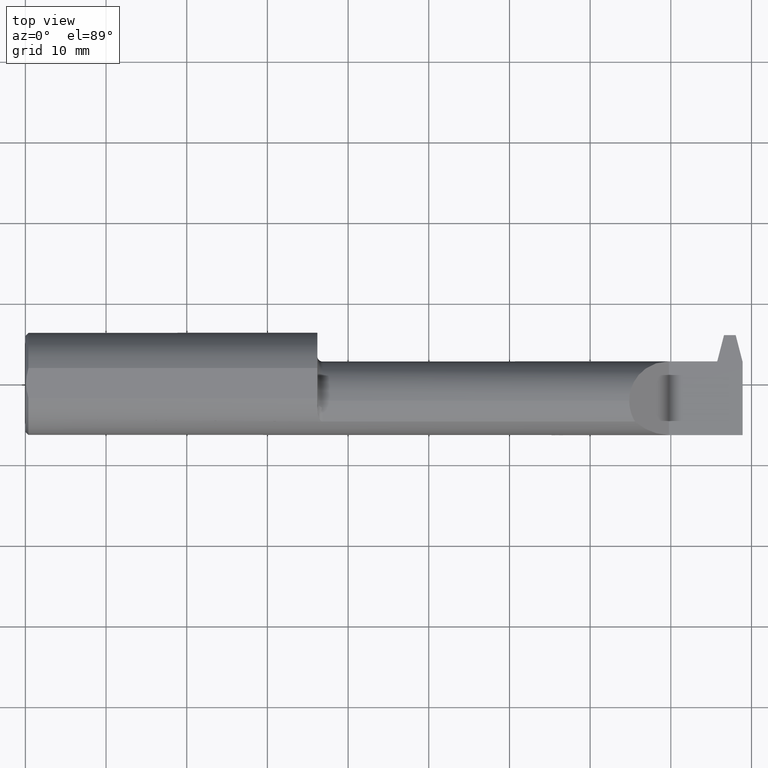
[diagram: clean part render]
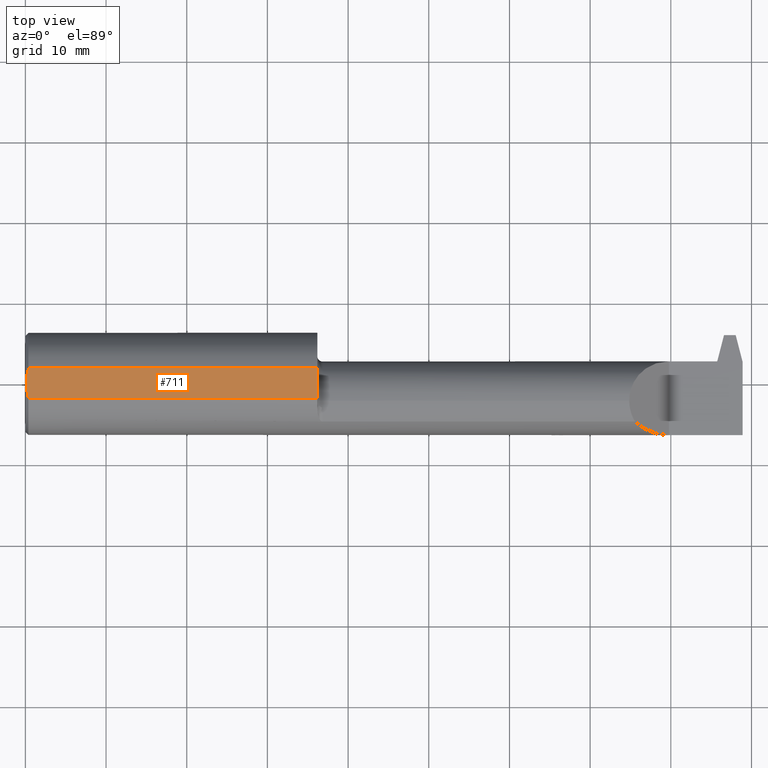
[diagram: same view with one face highlighted and labeled with its STEP entity id]
A machine part, top view. The second image highlights one B-rep face of the part: STEP entity #711.
In plain terms, the highlighted planar face has unit normal (-0, 0, -1).
Its self-contained STEP definition (entity closure, byte-faithful):
#9 = B_SPLINE_CURVE_WITH_KNOTS ( 'NONE', 3,
 ( #76, #137, #531, #365 ),
 .UNSPECIFIED., .F., .F.,
 ( 4, 4 ),
 ( 0.007106848166584642593, 0.008972081732692481146 ),
 .UNSPECIFIED. ) ;
#28 = DIRECTION ( 'NONE',  ( 1.000000000000000000, 0.000000000000000000, 0.000000000000000000 ) ) ;
#76 = CARTESIAN_POINT ( 'NONE',  ( 0.004000000000000164882, -8.838795650998935986E-18, 0.2388499999999999790 ) ) ;
#130 = VERTEX_POINT ( 'NONE', #570 ) ;
#137 = CARTESIAN_POINT ( 'NONE',  ( 0.004000000000000163147, -0.02498450228869498330, 0.2388499999999999790 ) ) ;
#147 = ORIENTED_EDGE ( 'NONE', *, *, #206, .T. ) ;
#149 = DIRECTION ( 'NONE',  ( -0.000000000000000000, 0.000000000000000000, -1.000000000000000000 ) ) ;
#174 = CARTESIAN_POINT ( 'NONE',  ( 1.424999999999999600, 0.1000000000000000056, 0.2388499999999999790 ) ) ;
#176 = VERTEX_POINT ( 'NONE', #572 ) ;
#179 = VECTOR ( 'NONE', #483, 39.37007874015748143 ) ;
#186 = CARTESIAN_POINT ( 'NONE',  ( 3.500000000000000000, 0.07331916529803116089, 0.2388499999999999790 ) ) ;
#190 = LINE ( 'NONE', #950, #628 ) ;
#206 = EDGE_CURVE ( 'NONE', #130, #526, #795, .T. ) ;
#221 = DIRECTION ( 'NONE',  ( -1.000000000000000000, 0.000000000000000000, 0.000000000000000000 ) ) ;
#270 = EDGE_CURVE ( 'NONE', #302, #662, #558, .T. ) ;
#290 = ORIENTED_EDGE ( 'NONE', *, *, #319, .T. ) ;
#302 = VERTEX_POINT ( 'NONE', #829 ) ;
#319 = EDGE_CURVE ( 'NONE', #526, #176, #9, .T. ) ;
#335 = ORIENTED_EDGE ( 'NONE', *, *, #641, .F. ) ;
#342 = CARTESIAN_POINT ( 'NONE',  ( 0.01500000000000024925, 0.07331916529803100824, 0.2388500000000000345 ) ) ;
#365 = CARTESIAN_POINT ( 'NONE',  ( 0.01500000000000021108, -0.07331916529803102212, 0.2388499999999999790 ) ) ;
#366 = PLANE ( 'NONE',  #671 ) ;
#395 = CARTESIAN_POINT ( 'NONE',  ( 0.004000000000000164882, -8.838795650998935986E-18, 0.2388499999999999790 ) ) ;
#427 = CARTESIAN_POINT ( 'NONE',  ( 0.004000000000000164882, -8.838795650998935986E-18, 0.2388499999999999790 ) ) ;
#444 = CARTESIAN_POINT ( 'NONE',  ( 0.000000000000000000, 0.1000000000000000056, 0.2388499999999999790 ) ) ;
#483 = DIRECTION ( 'NONE',  ( 0.000000000000000000, -1.000000000000000000, 0.000000000000000000 ) ) ;
#517 = FACE_OUTER_BOUND ( 'NONE', #881, .T. ) ;
#526 = VERTEX_POINT ( 'NONE', #427 ) ;
#531 = CARTESIAN_POINT ( 'NONE',  ( 0.007978205860497812260, -0.04939097055354201710, 0.2388499999999999790 ) ) ;
#550 = VECTOR ( 'NONE', #28, 39.37007874015748143 ) ;
#558 = LINE ( 'NONE', #174, #179 ) ;
#570 = CARTESIAN_POINT ( 'NONE',  ( 0.01500000000000024925, 0.07331916529803100824, 0.2388500000000000345 ) ) ;
#572 = CARTESIAN_POINT ( 'NONE',  ( 0.01500000000000021108, -0.07331916529803102212, 0.2388499999999999790 ) ) ;
#574 = DIRECTION ( 'NONE',  ( -1.000000000000000000, -0.000000000000000000, -0.000000000000000000 ) ) ;
#580 = EDGE_CURVE ( 'NONE', #662, #176, #190, .T. ) ;
#628 = VECTOR ( 'NONE', #574, 39.37007874015748143 ) ;
#637 = CARTESIAN_POINT ( 'NONE',  ( 1.424999999999999600, -0.07331916529803114702, 0.2388499999999999790 ) ) ;
#641 = EDGE_CURVE ( 'NONE', #130, #302, #717, .T. ) ;
#647 = CARTESIAN_POINT ( 'NONE',  ( 0.008000051362617503076, 0.04946541355466492484, 0.2388499999999999790 ) ) ;
#662 = VERTEX_POINT ( 'NONE', #637 ) ;
#671 = AXIS2_PLACEMENT_3D ( 'NONE', #444, #149, #221 ) ;
#711 = ADVANCED_FACE ( 'NONE', ( #517 ), #366, .F. ) ;
#717 = LINE ( 'NONE', #186, #550 ) ;
#737 = ORIENTED_EDGE ( 'NONE', *, *, #270, .F. ) ;
#795 = B_SPLINE_CURVE_WITH_KNOTS ( 'NONE', 3,
 ( #342, #647, #798, #395 ),
 .UNSPECIFIED., .F., .F.,
 ( 4, 4 ),
 ( 0.005234717643982412377, 0.007106848166584642593 ),
 .UNSPECIFIED. ) ;
#798 = CARTESIAN_POINT ( 'NONE',  ( 0.004000000000000163147, 0.02507688590673094742, 0.2388499999999999790 ) ) ;
#827 = ORIENTED_EDGE ( 'NONE', *, *, #580, .F. ) ;
#829 = CARTESIAN_POINT ( 'NONE',  ( 1.424999999999999600, 0.07331916529803114702, 0.2388499999999999790 ) ) ;
#881 = EDGE_LOOP ( 'NONE', ( #737, #335, #147, #290, #827 ) ) ;
#950 = CARTESIAN_POINT ( 'NONE',  ( 3.500000000000000000, -0.07331916529803116089, 0.2388499999999999790 ) ) ;